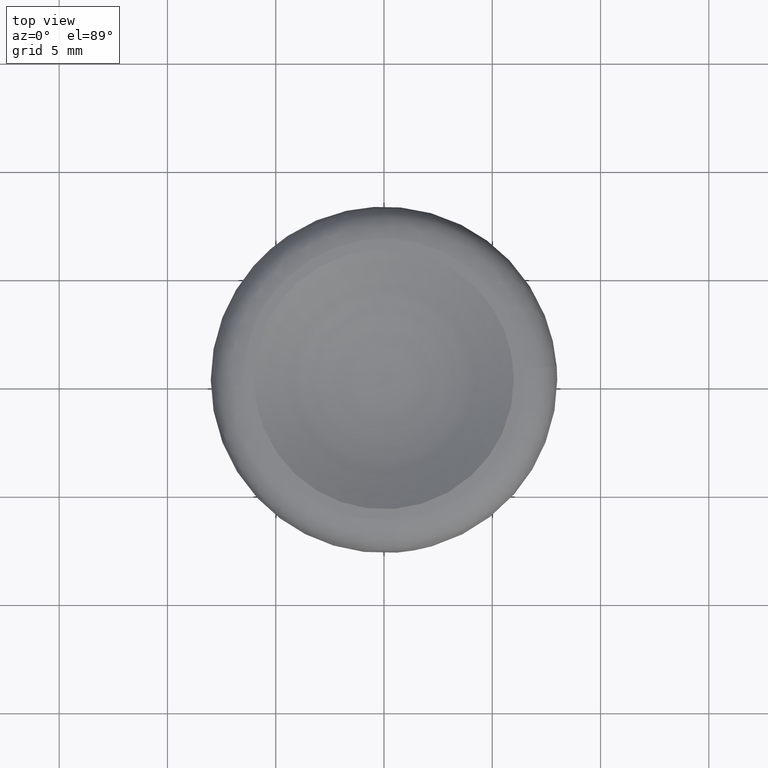
[diagram: clean part render]
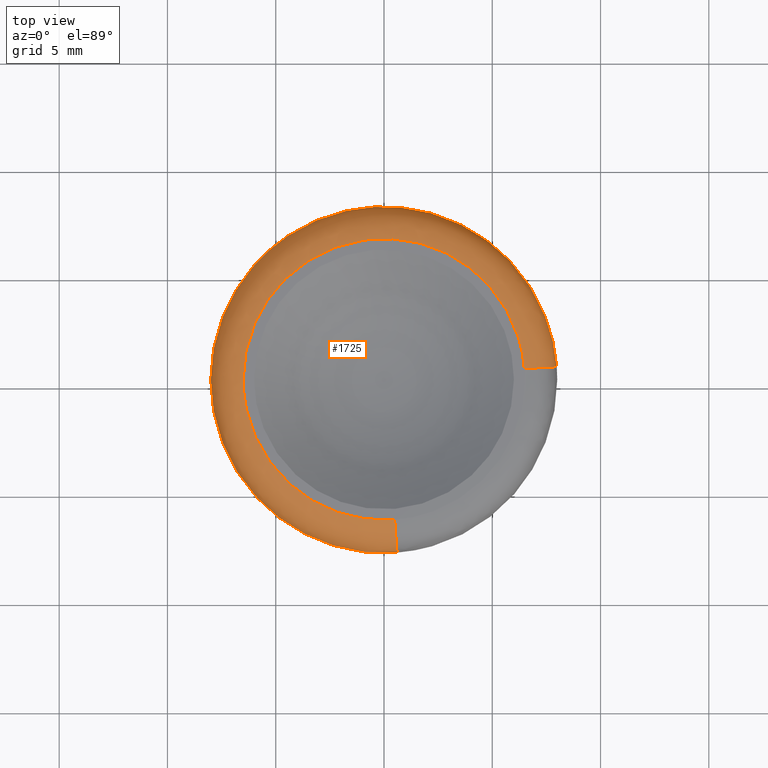
[diagram: same view with one face highlighted and labeled with its STEP entity id]
A machine part, top view. The second image highlights one B-rep face of the part: STEP entity #1725.
In plain terms, the highlighted face is a freeform B-spline surface patch.
Its self-contained STEP definition (entity closure, byte-faithful):
#1389=CARTESIAN_POINT('',(0.766746014187233,7.962961816904434,8.102537222125900));
#1390=VERTEX_POINT('',#1389);
#1396=CARTESIAN_POINT('',(7.977063061677898,0.602598721049658,8.102537257117039));
#1397=VERTEX_POINT('',#1396);
#1398=CARTESIAN_POINT('',(0.766746014187233,7.962961816904434,8.102537222125900));
#1399=CARTESIAN_POINT('',(7.469807547423430,7.317530401758615,8.102537225243232));
#1400=CARTESIAN_POINT('',(7.977063061677898,0.602598721049658,8.102537257117039));
#1408=(BOUNDED_CURVE()B_SPLINE_CURVE(2,(#1398,#1399,#1400),.UNSPECIFIED.,.F.,.U.)B_SPLINE_CURVE_WITH_KNOTS((3,3),(0.266651095234986,0.486870159260233),.UNSPECIFIED.)CURVE()GEOMETRIC_REPRESENTATION_ITEM()RATIONAL_B_SPLINE_CURVE((0.963582689691889,0.739948225500470,0.970850634522784))REPRESENTATION_ITEM(''));
#1409=EDGE_CURVE('',#1390,#1397,#1408,.T.);
#1426=CARTESIAN_POINT('',(0.602598721049395,-7.977063061677919,8.102537257117046));
#1427=VERTEX_POINT('',#1426);
#1441=CARTESIAN_POINT('',(-7.999791268970030,0.0,8.102537222004742));
#1442=VERTEX_POINT('',#1441);
#1443=CARTESIAN_POINT('',(0.602598721049395,-7.977063061677919,8.102537257117046));
#1444=CARTESIAN_POINT('',(0.301727980282953,-7.999791268970030,8.102537222004743));
#1445=CARTESIAN_POINT('',(0.0,-7.999791268970030,8.102537222004742));
#1446=CARTESIAN_POINT('',(-7.999791268970030,-7.999791268970030,8.102537222004742));
#1447=CARTESIAN_POINT('',(-7.999791268970030,0.0,8.102537222004742));
#1455=(BOUNDED_CURVE()B_SPLINE_CURVE(2,(#1443,#1444,#1445,#1446,#1447),.UNSPECIFIED.,.F.,.U.)B_SPLINE_CURVE_WITH_KNOTS((3,2,3),(0.736870159260245,0.750000000000000,1.0),.UNSPECIFIED.)CURVE()GEOMETRIC_REPRESENTATION_ITEM()RATIONAL_B_SPLINE_CURVE((0.970850634522808,0.984617434732900,1.0,0.707106781186547,1.0))REPRESENTATION_ITEM(''));
#1456=EDGE_CURVE('',#1427,#1442,#1455,.T.);
#1458=CARTESIAN_POINT('',(-4.451274238522982,6.647015721401498,8.102537222005136));
#1459=VERTEX_POINT('',#1458);
#1460=CARTESIAN_POINT('',(-7.999791268970030,0.0,8.102537222004742));
#1461=CARTESIAN_POINT('',(-7.999791268970030,4.270697821057120,8.102537222004742));
#1462=CARTESIAN_POINT('',(-4.451274238522982,6.647015721401498,8.102537222005136));
#1470=(BOUNDED_CURVE()B_SPLINE_CURVE(2,(#1460,#1461,#1462),.UNSPECIFIED.,.F.,.U.)B_SPLINE_CURVE_WITH_KNOTS((3,3),(0.0,0.154565963839577),.UNSPECIFIED.)CURVE()GEOMETRIC_REPRESENTATION_ITEM()RATIONAL_B_SPLINE_CURVE((1.0,0.818914709328090,0.861746398575170))REPRESENTATION_ITEM(''));
#1471=EDGE_CURVE('',#1442,#1459,#1470,.T.);
#1511=CARTESIAN_POINT('',(-4.451274238522982,6.647015721401498,8.102537222005136));
#1512=CARTESIAN_POINT('',(-2.431196424764597,7.999791268970030,8.102537222004743));
#1513=CARTESIAN_POINT('',(0.0,7.999791268970030,8.102537222004742));
#1514=CARTESIAN_POINT('',(0.384257529821210,7.999791268970030,8.102537222004742));
#1515=CARTESIAN_POINT('',(0.766746014187233,7.962961816904434,8.102537222125900));
#1523=(BOUNDED_CURVE()B_SPLINE_CURVE(2,(#1511,#1512,#1513,#1514,#1515),.UNSPECIFIED.,.F.,.U.)B_SPLINE_CURVE_WITH_KNOTS((3,2,3),(0.154565963839577,0.250000000000000,0.266651095234986),.UNSPECIFIED.)CURVE()GEOMETRIC_REPRESENTATION_ITEM()RATIONAL_B_SPLINE_CURVE((0.861746398575170,0.888192071858457,1.0,0.980492028479422,0.963582689691889))REPRESENTATION_ITEM(''));
#1524=EDGE_CURVE('',#1459,#1390,#1523,.T.);
#1628=CARTESIAN_POINT('',(0.482288252460607,-6.384420792328683,9.496616776438986));
#1629=CARTESIAN_POINT('',(-5.902132539868076,-6.866709044789290,9.496616776438984));
#1630=CARTESIAN_POINT('',(-6.384420792328683,-0.482288252460607,9.496616776438986));
#1631=CARTESIAN_POINT('',(-6.866709044789290,5.902132539868076,9.496616776438984));
#1632=CARTESIAN_POINT('',(-0.482288252460608,6.384420792328683,9.496616776438986));
#1633=CARTESIAN_POINT('',(5.902132539868074,6.866709044789292,9.496616776438984));
#1634=CARTESIAN_POINT('',(6.384420792328683,0.482288252460608,9.496616776438986));
#1635=CARTESIAN_POINT('',(0.602732368470478,-7.978832256103402,9.604190544376181));
#1636=CARTESIAN_POINT('',(-7.376099887632924,-8.581564624573879,9.604190544376181));
#1637=CARTESIAN_POINT('',(-7.978832256103402,-0.602732368470478,9.604190544376181));
#1638=CARTESIAN_POINT('',(-8.581564624573879,7.376099887632924,9.604190544376181));
#1639=CARTESIAN_POINT('',(-0.602732368470479,7.978832256103400,9.604190544376181));
#1640=CARTESIAN_POINT('',(7.376099887632920,8.581564624573879,9.604190544376181));
#1641=CARTESIAN_POINT('',(7.978832256103400,0.602732368470479,9.604190544376181));
#1642=CARTESIAN_POINT('',(0.602862956568886,-7.980560951269532,8.001622664064831));
#1643=CARTESIAN_POINT('',(-7.377697994700646,-8.583423907838416,8.001622664064831));
#1644=CARTESIAN_POINT('',(-7.980560951269532,-0.602862956568887,8.001622664064831));
#1645=CARTESIAN_POINT('',(-8.583423907838416,7.377697994700644,8.001622664064831));
#1646=CARTESIAN_POINT('',(-0.602862956568887,7.980560951269532,8.001622664064831));
#1647=CARTESIAN_POINT('',(7.377697994700644,8.583423907838416,8.001622664064831));
#1648=CARTESIAN_POINT('',(7.980560951269532,0.602862956568888,8.001622664064831));
#1656=(BOUNDED_SURFACE()B_SPLINE_SURFACE(2,2,((#1628,#1635,#1642),(#1629,#1636,#1643),(#1630,#1637,#1644),(#1631,#1638,#1645),(#1632,#1639,#1646),(#1633,#1640,#1647),(#1634,#1641,#1648)),.UNSPECIFIED.,.F.,.F.,.U.)B_SPLINE_SURFACE_WITH_KNOTS((3,2,2,3),(3,3),(0.0,13.260300160774831,26.520600321549669,39.780900482324512),(0.0,2.602243389653216),.UNSPECIFIED.)GEOMETRIC_REPRESENTATION_ITEM()RATIONAL_B_SPLINE_SURFACE(((0.916898822887166,0.625832361359511,0.914743516605567),(0.648345375325479,0.442530306603300,0.646821343638226),(0.916898822887166,0.625832361359511,0.914743516605567),(0.648345375325479,0.442530306603300,0.646821343638226),(0.916898822887166,0.625832361359511,0.914743516605567),(0.648345375325479,0.442530306603300,0.646821343638226),(0.916898822887166,0.625832361359511,0.914743516605567)))REPRESENTATION_ITEM('')SURFACE());
#1657=ORIENTED_EDGE('',*,*,#1456,.F.);
#1658=CARTESIAN_POINT('',(0.489872814608703,-6.484823477230933,9.499999999999901));
#1659=VERTEX_POINT('',#1658);
#1660=CARTESIAN_POINT('',(0.489872814608703,-6.484823477230933,9.499999999999901));
#1661=CARTESIAN_POINT('',(0.595386028018198,-7.881583093405029,9.499999997797451));
#1662=CARTESIAN_POINT('',(0.602598721049395,-7.977063061677919,8.102537257117046));
#1670=(BOUNDED_CURVE()B_SPLINE_CURVE(2,(#1660,#1661,#1662),.UNSPECIFIED.,.F.,.U.)B_SPLINE_CURVE_WITH_KNOTS((3,3),(-1.726123027002029,-0.279789030406771),.UNSPECIFIED.)CURVE()GEOMETRIC_REPRESENTATION_ITEM()RATIONAL_B_SPLINE_CURVE((0.891658472532791,0.650974875835408,0.889698838713015))REPRESENTATION_ITEM(''));
#1671=EDGE_CURVE('',#1659,#1427,#1670,.T.);
#1672=ORIENTED_EDGE('',*,*,#1671,.F.);
#1673=CARTESIAN_POINT('',(-6.503300000000000,0.0,9.499999999999901));
#1674=VERTEX_POINT('',#1673);
#1675=CARTESIAN_POINT('',(0.489872814608703,-6.484823477230933,9.499999999999901));
#1676=CARTESIAN_POINT('',(0.245284846682335,-6.503299999999999,9.499999999999901));
#1677=CARTESIAN_POINT('',(0.0,-6.503300000000000,9.499999999999901));
#1678=CARTESIAN_POINT('',(-6.503300000000000,-6.503300000000000,9.499999999999902));
#1679=CARTESIAN_POINT('',(-6.503300000000000,0.0,9.499999999999901));
#1687=(BOUNDED_CURVE()B_SPLINE_CURVE(2,(#1675,#1676,#1677,#1678,#1679),.UNSPECIFIED.,.F.,.U.)B_SPLINE_CURVE_WITH_KNOTS((3,2,3),(0.736870159255462,0.750000000000000,1.0),.UNSPECIFIED.)CURVE()GEOMETRIC_REPRESENTATION_ITEM()RATIONAL_B_SPLINE_CURVE((0.970850634512779,0.984617434727297,1.0,0.707106781186547,1.0))REPRESENTATION_ITEM(''));
#1688=EDGE_CURVE('',#1659,#1674,#1687,.T.);
#1689=ORIENTED_EDGE('',*,*,#1688,.T.);
#1690=CARTESIAN_POINT('',(6.484823477214378,0.489872814605042,9.499999999999901));
#1691=VERTEX_POINT('',#1690);
#1692=CARTESIAN_POINT('',(-6.503300000000000,0.0,9.499999999999901));
#1693=CARTESIAN_POINT('',(-6.503300000000000,6.503300000000000,9.499999999999902));
#1694=CARTESIAN_POINT('',(0.0,6.503300000000000,9.499999999999901));
#1695=CARTESIAN_POINT('',(6.030560609548873,6.503300000000000,9.499999999999901));
#1696=CARTESIAN_POINT('',(6.484823477214378,0.489872814605042,9.499999999999901));
#1704=(BOUNDED_CURVE()B_SPLINE_CURVE(2,(#1692,#1693,#1694,#1695,#1696),.UNSPECIFIED.,.F.,.U.)B_SPLINE_CURVE_WITH_KNOTS((3,2,3),(0.0,0.250000000000000,0.486870159255589),.UNSPECIFIED.)CURVE()GEOMETRIC_REPRESENTATION_ITEM()RATIONAL_B_SPLINE_CURVE((1.0,0.707106781186547,1.0,0.722489346459102,0.970850634513045))REPRESENTATION_ITEM(''));
#1705=EDGE_CURVE('',#1674,#1691,#1704,.T.);
#1706=ORIENTED_EDGE('',*,*,#1705,.T.);
#1707=CARTESIAN_POINT('',(6.484823477214377,0.489872814605042,9.499999999999901));
#1708=CARTESIAN_POINT('',(7.881583093402902,0.595386028018038,9.499999997828798));
#1709=CARTESIAN_POINT('',(7.977063061677898,0.602598721049658,8.102537257117039));
#1717=(BOUNDED_CURVE()B_SPLINE_CURVE(2,(#1707,#1708,#1709),.UNSPECIFIED.,.F.,.U.)B_SPLINE_CURVE_WITH_KNOTS((3,3),(-1.726123027025767,-0.279789030406761),.UNSPECIFIED.)CURVE()GEOMETRIC_REPRESENTATION_ITEM()RATIONAL_B_SPLINE_CURVE((0.891658472540692,0.650974875831489,0.889698838713018))REPRESENTATION_ITEM(''));
#1718=EDGE_CURVE('',#1691,#1397,#1717,.T.);
#1719=ORIENTED_EDGE('',*,*,#1718,.T.);
#1720=ORIENTED_EDGE('',*,*,#1409,.F.);
#1721=ORIENTED_EDGE('',*,*,#1524,.F.);
#1722=ORIENTED_EDGE('',*,*,#1471,.F.);
#1723=EDGE_LOOP('',(#1657,#1672,#1689,#1706,#1719,#1720,#1721,#1722));
#1724=FACE_OUTER_BOUND('',#1723,.T.);
#1725=ADVANCED_FACE('',(#1724),#1656,.T.);